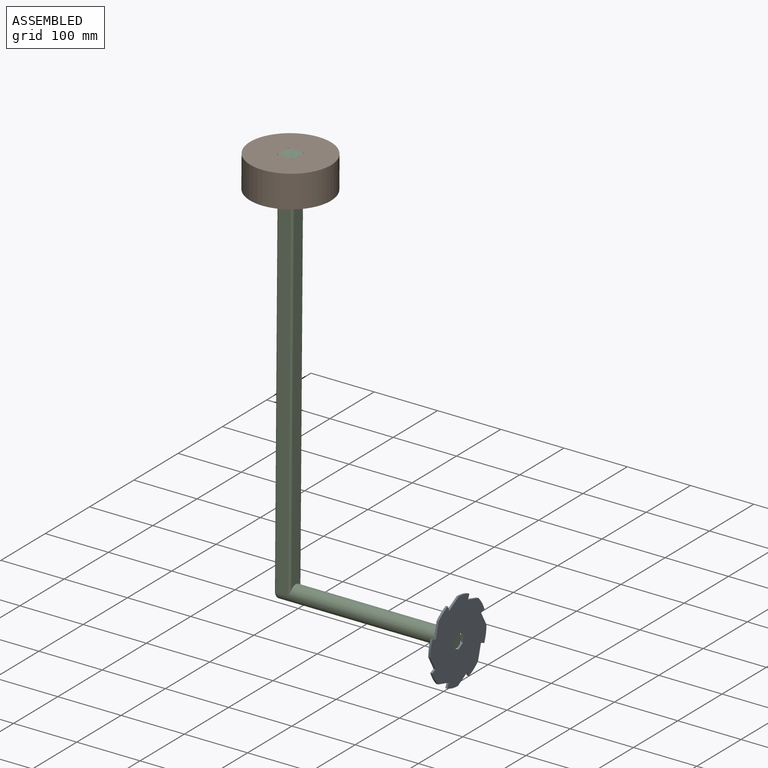
[diagram: assembled view]
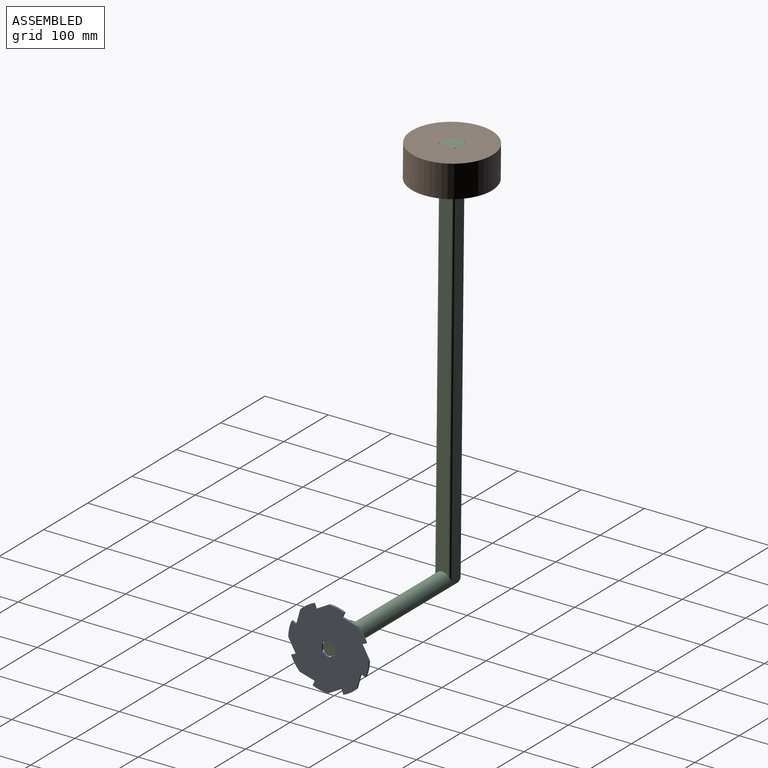
[diagram: assembled view, second angle]
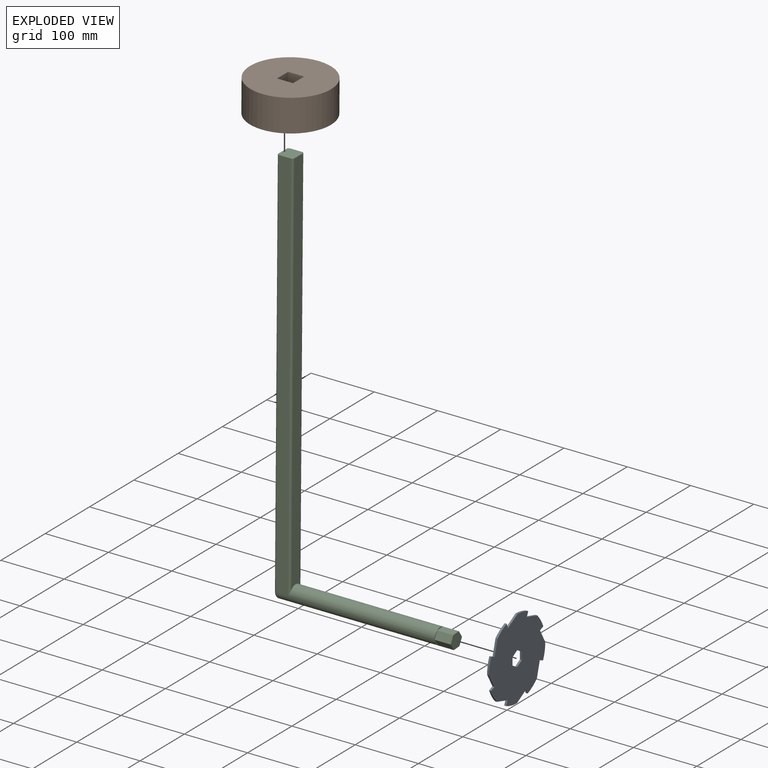
[diagram: exploded view]
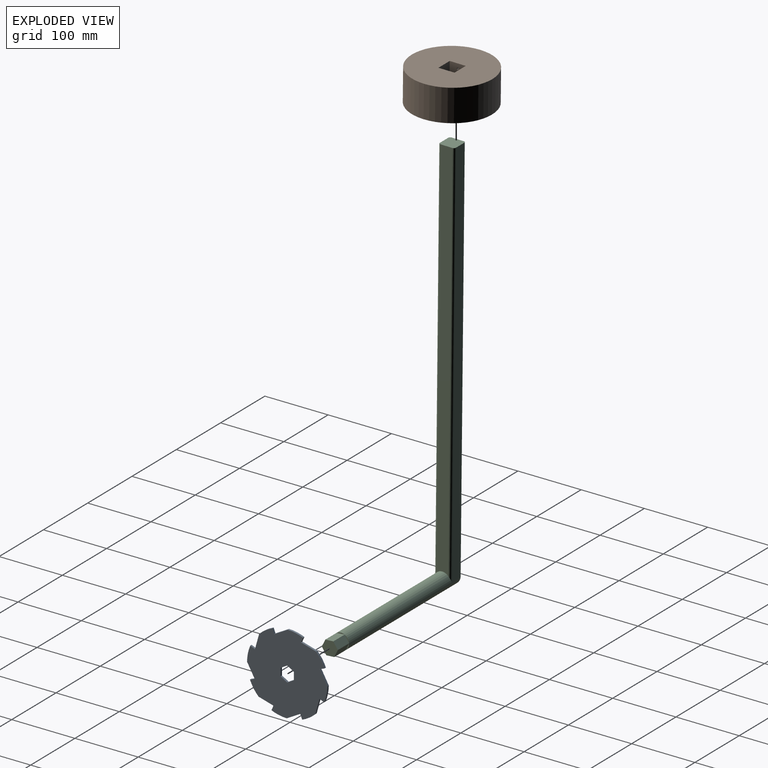
[diagram: exploded view, second angle]
ASSEMBLY  parts=3 mates=2
PART A: 32 faces, bbox 127x3.2x127 mm
  f0: cylinder r=63.5mm len=20.6mm, axis (0,1,0), area 79.2mm2, adj f8,f9,f29,f30
  f1: cylinder r=63.5mm len=24.3mm, axis (0,1,0), area 79.2mm2, adj f8,f9,f27,f28
  f2: cylinder r=63.5mm len=20.6mm, axis (0,1,0), area 79.2mm2, adj f8,f9,f25,f26
  f3: cylinder r=63.5mm len=24.3mm, axis (0,1,0), area 79.2mm2, adj f8,f9,f23,f24
  f4: cylinder r=63.5mm len=20.6mm, axis (0,1,0), area 79.2mm2, adj f8,f9,f21,f22
  f5: cylinder r=63.5mm len=24.3mm, axis (0,1,0), area 79.2mm2, adj f8,f9,f19,f20
  f6: cylinder r=63.5mm len=20.6mm, axis (0,1,0), area 79.2mm2, adj f8,f9,f11,f18
  f7: cylinder r=63.5mm len=24.3mm, axis (0,1,0), area 79.2mm2, adj f8,f9,f10,f31
  f8: plane 127x127mm, normal (0,-1,0), area 11345mm2, adj f0,f1,f2,f3,f4,f5,f6,f7
  f9: plane 127x127mm, normal (0,1,0), area 11345mm2, adj f0,f1,f2,f3,f4,f5,f6,f7
  f10: plane 21.23x12.26mm, normal (0.5,0,0.87), area 77.8mm2, adj f7,f8,f9,f11
  f11: plane 7.42x3.18mm, normal (-0.92,0,0.38), area 25.5mm2, adj f6,f8,f9,f10
  f12: plane 12.1x3.18mm, normal (1,0,-0.01), area 38.4mm2, adj f8,f9,f13,f17
  f13: plane 10.41x6.16mm, normal (0.51,0,0.86), area 38.4mm2, adj f8,f9,f12,f14
  f14: plane 10.54x5.94mm, normal (-0.49,0,0.87), area 38.4mm2, adj f8,f9,f13,f15
  f15: plane 12.1x3.18mm, normal (-1,0,0.01), area 38.4mm2, adj f8,f9,f14,f16
  f16: plane 10.41x6.16mm, normal (-0.51,0,-0.86), area 38.4mm2, adj f8,f9,f15,f17
  f17: plane 10.54x5.94mm, normal (0.49,0,-0.87), area 38.4mm2, adj f8,f9,f12,f16
  f18: plane 23.68x6.34mm, normal (0.97,0,0.26), area 77.8mm2, adj f6,f8,f9,f19
  f19: plane 7.42x3.18mm, normal (-0.38,0,0.92), area 25.5mm2, adj f5,f8,f9,f18
  f20: plane 21.23x12.26mm, normal (0.87,0,-0.5), area 77.8mm2, adj f5,f8,f9,f21
  f21: plane 7.42x3.18mm, normal (0.38,0,0.92), area 25.5mm2, adj f4,f8,f9,f20
  f22: plane 23.68x6.34mm, normal (0.26,0,-0.97), area 77.8mm2, adj f4,f8,f9,f23
  f23: plane 7.42x3.18mm, normal (0.92,0,0.38), area 25.5mm2, adj f3,f8,f9,f22
  f24: plane 21.23x12.26mm, normal (-0.5,0,-0.87), area 77.8mm2, adj f3,f8,f9,f25
  f25: plane 7.42x3.18mm, normal (0.92,0,-0.38), area 25.5mm2, adj f2,f8,f9,f24
  f26: plane 23.68x6.34mm, normal (-0.97,0,-0.26), area 77.8mm2, adj f2,f8,f9,f27
  f27: plane 7.42x3.18mm, normal (0.38,0,-0.92), area 25.5mm2, adj f1,f8,f9,f26
  f28: plane 21.23x12.26mm, normal (-0.87,0,0.5), area 77.8mm2, adj f1,f8,f9,f29
  f29: plane 7.42x3.18mm, normal (-0.38,0,-0.92), area 25.5mm2, adj f0,f8,f9,f28
  f30: plane 23.68x6.34mm, normal (-0.26,0,0.97), area 77.8mm2, adj f0,f8,f9,f31
  f31: plane 7.42x3.18mm, normal (-0.92,0,-0.38), area 25.5mm2, adj f7,f8,f9,f30
PART B: 9 faces, bbox 127x50.8x127 mm
  f0: cylinder r=63.5mm len=127mm, axis (0,1,0), area 20268.3mm2, adj f1,f2
  f1: plane 127x127mm, normal (0,-1,0), area 12022.5mm2, adj f0,f3,f4,f5,f6
  f2: plane 127x127mm, normal (0,1,0), area 12022.5mm2, adj f0,f3,f4,f5,f6
  f3: plane 50.8x25.4mm, normal (-1,0,0), area 1290.3mm2, adj f1,f2,f4,f6
  f4: plane 50.8x25.4mm, normal (0,0,1), area 1290.3mm2, adj f1,f2,f3,f5
  f5: plane 50.8x25.4mm, normal (1,0,0), area 1282.4mm2, adj f1,f2,f4,f6,f7
  f6: plane 50.8x25.4mm, normal (0,0,-1), area 1290.3mm2, adj f1,f2,f3,f5
  f7: cylinder r=1.59mm len=19.05mm, axis (1,0,0), area 190mm2, adj f5,f8
  f8: plane 3.18x3.18mm, normal (1,0,0), area 7.9mm2, adj f7
PART C: 24 faces, bbox 279.4x636x27.5 mm
  f0: plane 10.48x7.18mm, normal (1,0,0), area 14.6mm2, adj f11,f12
  f1: plane 11.45x5.52mm, normal (1,0,0), area 14.6mm2, adj f11,f17
  f2: plane 12.66x2.22mm, normal (1,0,0), area 14.6mm2, adj f11,f16
  f3: plane 10.48x7.18mm, normal (1,0,0), area 14.6mm2, adj f11,f15
  f4: plane 11.45x5.52mm, normal (1,0,0), area 14.6mm2, adj f11,f14
  f5: plane 12.66x2.22mm, normal (1,0,0), area 14.6mm2, adj f11,f13
  f6: plane 622.3x19.05mm, normal (0,0,1), area 11854.8mm2, adj f10,f11,f19,f23
  f7: plane 631.83x19.05mm, normal (-1,0,0), area 11997.3mm2, adj f10,f19,f20,f21
  f8: plane 622.3x19.05mm, normal (0,0,-1), area 11854.8mm2, adj f10,f11,f20,f22
  f9: plane 613.9x19.05mm, normal (1,0,0), area 11638mm2, adj f10,f11,f22,f23
  f10: plane 25.4x25.4mm, normal (0,1,0), area 636.5mm2, adj f6,f7,f8,f9,f19,f20,f22,f23
  f11: cylinder r=12.7mm len=250.83mm, axis (-1,0,0), area 19150.6mm2, adj f0,f1,f2,f3,f4,f5,f6,f8
  f12: plane 25.4x10.48mm, normal (0,-0.57,0.82), area 322.6mm2, adj f0,f13,f17,f18
  f13: plane 25.4x12.66mm, normal (0,-1,-0.08), area 322.6mm2, adj f5,f12,f14,f18
  f14: plane 25.4x11.45mm, normal (0,-0.43,-0.9), area 322.6mm2, adj f4,f13,f15,f18
  f15: plane 25.4x10.48mm, normal (0,0.57,-0.82), area 322.6mm2, adj f3,f14,f16,f18
  f16: plane 25.4x12.66mm, normal (0,1,0.08), area 322.6mm2, adj f2,f15,f17,f18
  f17: plane 25.4x11.45mm, normal (0,0.43,0.9), area 322.6mm2, adj f1,f12,f16,f18
  f18: plane 25.32x22.91mm, normal (1,0,0), area 419mm2, adj f12,f13,f14,f15,f16,f17
  f19: cylinder r=3.17mm len=622.3mm, axis (0,1,0), area 3103.6mm2, adj f6,f7,f10,f21
  f20: cylinder r=3.17mm len=622.3mm, axis (0,-1,0), area 3103.6mm2, adj f7,f8,f10,f21
  f21: torus R=9.53mm, axis (-1,0,0), area 180.9mm2, adj f7,f11,f19,f20
  f22: cylinder r=3.17mm len=622.3mm, axis (0,1,0), area 3080.8mm2, adj f8,f9,f10,f11
  f23: cylinder r=3.17mm len=622.3mm, axis (0,-1,0), area 3080.8mm2, adj f6,f9,f10,f11
PLACE A rot(axis=(-0.01,-0.01,-1),90deg) t=(219.93,-395.34,315.15)mm
PLACE B rot(axis=(1,0,0),89.4deg) t=(-49.94,-388.78,937.42)mm
PLACE C rot(axis=(1,0,0),89.4deg) t=(-49.94,-388.78,937.42)mm
MATE fastened A.f0 <-> C.f11  axis (-1,0,0) through (216.76,-395.34,315.15)mm
MATE fastened B.f0 <-> C.f10  axis (0,0.01,1) through (-49.94,-388.78,937.42)mm
